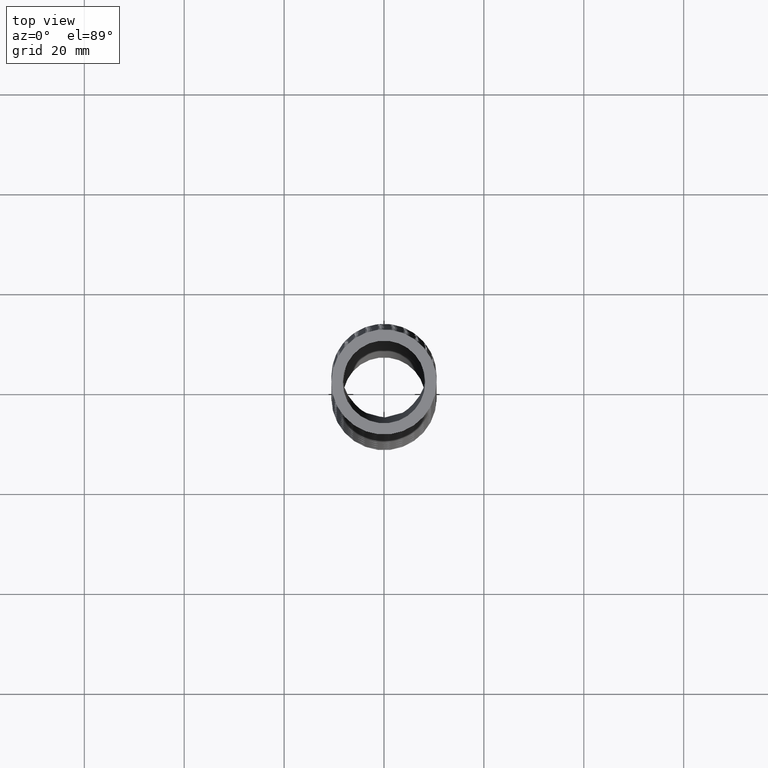
[diagram: clean part render]
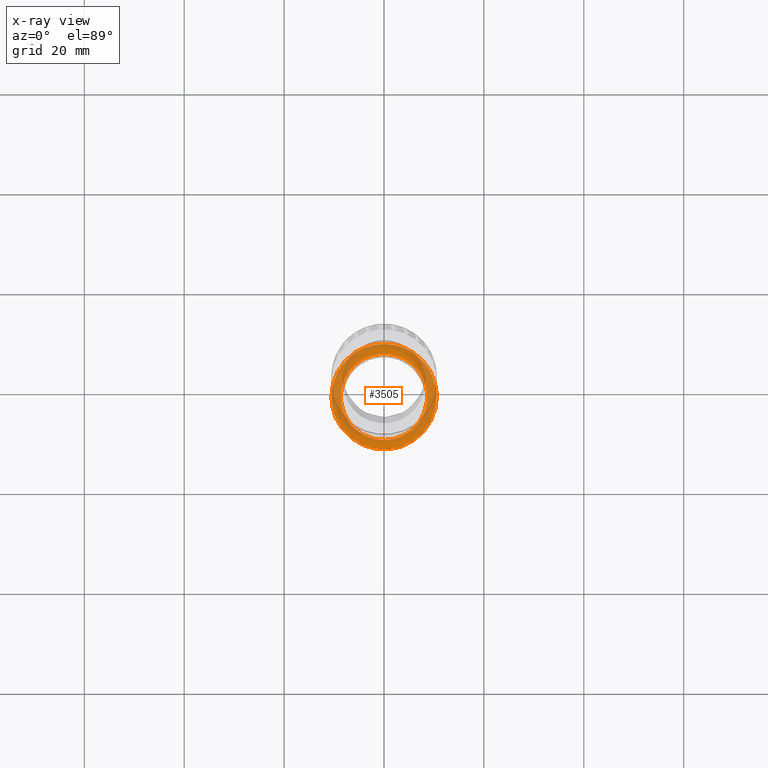
[diagram: x-ray — body ghosted, one internal face saturated and labeled with its STEP entity id]
A machine part, top view, then the same camera in x-ray: the body is ghosted and one INTERNAL B-rep face — a face not visible from any outside direction — is saturated and labeled: STEP entity #3505.
In plain terms, the highlighted planar face has unit normal (0, -0, 1).
Its self-contained STEP definition (entity closure, byte-faithful):
#2402 = EDGE_CURVE ( 'NONE', #2535, #2459, #11323, .T. ) ;
#2459 = VERTEX_POINT ( 'NONE', #11600 ) ;
#2535 = VERTEX_POINT ( 'NONE', #11768 ) ;
#3486 = ORIENTED_EDGE ( 'NONE', *, *, #3498, .F. ) ;
#3498 = EDGE_CURVE ( 'NONE', #2459, #2535, #15550, .T. ) ;
#3505 = ADVANCED_FACE ( 'NONE', ( #15546, #15545 ), #15582, .T. ) ;
#3508 = EDGE_LOOP ( 'NONE', ( #3510, #3512 ) ) ;
#3510 = ORIENTED_EDGE ( 'NONE', *, *, #19506, .F. ) ;
#3512 = ORIENTED_EDGE ( 'NONE', *, *, #19574, .F. ) ;
#3515 = EDGE_LOOP ( 'NONE', ( #3517, #3486 ) ) ;
#3517 = ORIENTED_EDGE ( 'NONE', *, *, #2402, .F. ) ;
#11319 = DIRECTION ( 'NONE',  ( 0.0000000000000000000, -1.000000000000000000, 0.0000000000000000000 ) ) ;
#11320 = DIRECTION ( 'NONE',  ( 0.0000000000000000000, -1.734723475976807100E-018, 1.000000000000000000 ) ) ;
#11321 = CARTESIAN_POINT ( 'NONE',  ( 0.0000000000000000000, -0.02274611171192321400, -5.464937736828732200 ) ) ;
#11322 = AXIS2_PLACEMENT_3D ( 'NONE', #11321, #11320, #11319 ) ;
#11323 = CIRCLE ( 'NONE', #11322, 0.3399999999999999700 ) ;
#11600 = CARTESIAN_POINT ( 'NONE',  ( 4.163799117101000900E-017, 0.3172538882880768200, -5.464937736828732200 ) ) ;
#11768 = CARTESIAN_POINT ( 'NONE',  ( 0.0000000000000000000, -0.3627461117119231700, -5.464937736828732200 ) ) ;
#15545 = FACE_BOUND ( 'NONE', #3515, .T. ) ;
#15546 = FACE_OUTER_BOUND ( 'NONE', #3508, .T. ) ;
#15547 = DIRECTION ( 'NONE',  ( 0.0000000000000000000, -1.000000000000000000, 0.0000000000000000000 ) ) ;
#15548 = DIRECTION ( 'NONE',  ( 0.0000000000000000000, -1.734723475976807100E-018, 1.000000000000000000 ) ) ;
#15549 = AXIS2_PLACEMENT_3D ( 'NONE', #15556, #15548, #15547 ) ;
#15550 = CIRCLE ( 'NONE', #15549, 0.3399999999999999700 ) ;
#15556 = CARTESIAN_POINT ( 'NONE',  ( 0.0000000000000000000, -0.02274611171192321400, -5.464937736828732200 ) ) ;
#15577 = DIRECTION ( 'NONE',  ( 0.0000000000000000000, -1.000000000000000000, -1.734723475976807100E-018 ) ) ;
#15578 = DIRECTION ( 'NONE',  ( 0.0000000000000000000, -1.734723475976807100E-018, 1.000000000000000000 ) ) ;
#15579 = CARTESIAN_POINT ( 'NONE',  ( 0.0000000000000000000, 0.4172538882880768600, -5.464937736828732200 ) ) ;
#15580 = AXIS2_PLACEMENT_3D ( 'NONE', #15579, #15578, #15577 ) ;
#15582 = PLANE ( 'NONE',  #15580 ) ;
#17519 = CARTESIAN_POINT ( 'NONE',  ( -0.2532923938269295800, -0.3512173383280495200, -5.464937736828728600 ) ) ;
#17520 = CARTESIAN_POINT ( 'NONE',  ( -0.2195528373879502800, -0.3738680642764501400, -5.464937736828729500 ) ) ;
#17521 = CARTESIAN_POINT ( 'NONE',  ( -0.2079192490952963300, -0.3808811643447759200, -5.464937736828733100 ) ) ;
#17522 = CARTESIAN_POINT ( 'NONE',  ( -0.1838581765978306900, -0.3938056636433138200, -5.464937736828733100 ) ) ;
#17523 = CARTESIAN_POINT ( 'NONE',  ( -0.1714109298587865300, -0.3997156466468335700, -5.464937736828734000 ) ) ;
#17524 = CARTESIAN_POINT ( 'NONE',  ( -0.1336942835062665300, -0.4153918422941408900, -5.464937736828733100 ) ) ;
#17526 = CARTESIAN_POINT ( 'NONE',  ( -0.1077913557857090900, -0.4232782405480442500, -5.464937736828733100 ) ) ;
#17527 = CARTESIAN_POINT ( 'NONE',  ( -0.06780344208651564700, -0.4312755175579405800, -5.464937736828733100 ) ) ;
#17528 = CARTESIAN_POINT ( 'NONE',  ( -0.05421737764275382000, -0.4333036651133560000, -5.464937736828732200 ) ) ;
#17529 = CARTESIAN_POINT ( 'NONE',  ( -0.02697472720179451200, -0.4359900985418384600, -5.464937736828730400 ) ) ;
#17530 = CARTESIAN_POINT ( 'NONE',  ( -0.01338761066140354100, -0.4366491003579451900, -5.464937736828733100 ) ) ;
#17531 = CARTESIAN_POINT ( 'NONE',  ( 0.02727407743484704100, -0.4366327549974951000, -5.464937736828735700 ) ) ;
#17532 = CARTESIAN_POINT ( 'NONE',  ( 0.05424994328282122700, -0.4339831745067491100, -5.464937736828733100 ) ) ;
#17533 = CARTESIAN_POINT ( 'NONE',  ( 0.09451010690118949500, -0.4259358548725572500, -5.464937736828732200 ) ) ;
#17534 = CARTESIAN_POINT ( 'NONE',  ( 0.1078323041540196300, -0.4225744650732133900, -5.464937736828734800 ) ) ;
#17535 = CARTESIAN_POINT ( 'NONE',  ( 0.1338345774377293400, -0.4146350242768425100, -5.464937736828738400 ) ) ;
#17536 = CARTESIAN_POINT ( 'NONE',  ( 0.1593291887571150500, -0.4054539067717680100, -5.464937736828734000 ) ) ;
#17537 = CARTESIAN_POINT ( 'NONE',  ( 0.1838217979711273800, -0.3938220193376187300, -5.464937736828732200 ) ) ;
#17538 = CARTESIAN_POINT ( 'NONE',  ( 0.2078055070147814500, -0.3809454267000108600, -5.464937736828734000 ) ) ;
#17539 = CARTESIAN_POINT ( 'NONE',  ( 0.2196059517606582000, -0.3738392784359944000, -5.464937736828734000 ) ) ;
#17540 = CARTESIAN_POINT ( 'NONE',  ( 0.2536205187259670300, -0.3509831784210056800, -5.464937736828734000 ) ) ;
#17541 = CARTESIAN_POINT ( 'NONE',  ( 0.2745053624421308100, -0.3337299205789436800, -5.464937736828730400 ) ) ;
#17542 = CARTESIAN_POINT ( 'NONE',  ( 0.3032080747407609500, -0.3048968520696983000, -5.464937736828732200 ) ) ;
#17543 = CARTESIAN_POINT ( 'NONE',  ( 0.3123350906048098000, -0.2947901110829491100, -5.464937736828738400 ) ) ;
#17544 = CARTESIAN_POINT ( 'NONE',  ( 0.3296796123799918300, -0.2735532365893415500, -5.464937736828735700 ) ) ;
#17545 = CARTESIAN_POINT ( 'NONE',  ( 0.3378010590027711900, -0.2625343779170476500, -5.464937736828726000 ) ) ;
#17546 = CARTESIAN_POINT ( 'NONE',  ( 0.3603469814118647200, -0.2286012992607529000, -5.464937736828727700 ) ) ;
#17547 = CARTESIAN_POINT ( 'NONE',  ( 0.3730683640342138400, -0.2046993903092518300, -5.464937736828732200 ) ) ;
#17548 = CARTESIAN_POINT ( 'NONE',  ( 0.3886567504208053900, -0.1669102042644292100, -5.464937736828730400 ) ) ;
#17549 = CARTESIAN_POINT ( 'NONE',  ( 0.3932817629746159200, -0.1539225542351071500, -5.464937736828728600 ) ) ;
#17550 = CARTESIAN_POINT ( 'NONE',  ( 0.4011590936649436200, -0.1278002873641745600, -5.464937736828729500 ) ) ;
#17551 = CARTESIAN_POINT ( 'NONE',  ( 0.4044348590811801000, -0.1146263319853195200, -5.464937736828729500 ) ) ;
#17552 = CARTESIAN_POINT ( 'NONE',  ( 0.4123179035665350800, -0.07477356482914839000, -5.464937736828729500 ) ) ;
#17553 = CARTESIAN_POINT ( 'NONE',  ( 0.4150000000000000900, -0.04776709749349757100, -5.464937736828732200 ) ) ;
#17554 = CARTESIAN_POINT ( 'NONE',  ( 0.4150000000000000900, -0.02030415200967537700, -5.464937736828733100 ) ) ;
#17555 = CARTESIAN_POINT ( 'NONE',  ( -0.4150000000000001500, -0.02030415200967533200, -5.464937736828733100 ) ) ;
#17556 = B_SPLINE_CURVE_WITH_KNOTS ( 'NONE', 3,
 ( #17554, #17553, #17552, #17551, #17550, #17549, #17548, #17547, #17546, #17545, #17544, #17543, #17542, #17541, #17540, #17539, #17538, #17537, #17536, #17535, #17534, #17533, #17532, #17531, #17530, #17529, #17528, #17527, #17526, #17524, #17523, #17522, #17521, #17520, #17519, #17586, #17585, #17584, #17583, #17582, #17581, #17580, #17579, #17578, #17577, #17576, #17575 ),
 .UNSPECIFIED., .F., .F.,
 ( 4, 2, 2, 2, 2, 2, 2, 2, 2, 1, 2, 2, 2, 2, 2, 2, 2, 2, 2, 2, 2, 2, 2, 4 ),
 ( 0.0000000000000000000, 0.002063010963991905100, 0.003094516445987857600, 0.004126021927983810100, 0.006189032891975712600, 0.007220538373971666400, 0.008252043855967618500, 0.01031505481995952600, 0.01134656030195547800, 0.01237806578395143200, 0.01340957126594738400, 0.01444107674794333600, 0.01650408771193524100, 0.01753559319393119300, 0.01856709867592714500, 0.02063010963991904900, 0.02166161512191499800, 0.02269312060391095000, 0.02475613156790285700, 0.02681914253189476500, 0.02785064801389072400, 0.02888215349588667600, 0.03094516445987858400, 0.03300817542387049500 ),
 .UNSPECIFIED. ) ;
#17557 = CARTESIAN_POINT ( 'NONE',  ( 0.4150000000000000900, -0.02030415200967537700, -5.464937736828733100 ) ) ;
#17575 = CARTESIAN_POINT ( 'NONE',  ( -0.4150000000000001500, -0.02030415200967533200, -5.464937736828733100 ) ) ;
#17576 = CARTESIAN_POINT ( 'NONE',  ( -0.4150000000000000900, -0.04743198527417359600, -5.464937736828732200 ) ) ;
#17577 = CARTESIAN_POINT ( 'NONE',  ( -0.4122954505490093500, -0.07498106237111050500, -5.464937736828730400 ) ) ;
#17578 = CARTESIAN_POINT ( 'NONE',  ( -0.4017200594881960000, -0.1282560468998375800, -5.464937736828734000 ) ) ;
#17579 = CARTESIAN_POINT ( 'NONE',  ( -0.3938980667774331100, -0.1541822377861724900, -5.464937736828729500 ) ) ;
#17580 = CARTESIAN_POINT ( 'NONE',  ( -0.3783152107370997800, -0.1919909816658015300, -5.464937736828728600 ) ) ;
#17581 = CARTESIAN_POINT ( 'NONE',  ( -0.3724410368897020400, -0.2044648959458922100, -5.464937736828738400 ) ) ;
#17582 = CARTESIAN_POINT ( 'NONE',  ( -0.3596201231416786300, -0.2285384226481297100, -5.464937736828735700 ) ) ;
#17583 = CARTESIAN_POINT ( 'NONE',  ( -0.3526583982230219700, -0.2401899047610848700, -5.464937736828724200 ) ) ;
#17584 = CARTESIAN_POINT ( 'NONE',  ( -0.3301525952588320600, -0.2740116940400558200, -5.464937736828727700 ) ) ;
#17585 = CARTESIAN_POINT ( 'NONE',  ( -0.3129720800223953500, -0.2950925092336674800, -5.464937736828730400 ) ) ;
#17586 = CARTESIAN_POINT ( 'NONE',  ( -0.2742484600058984800, -0.3339839768587319300, -5.464937736828732200 ) ) ;
#18159 = CARTESIAN_POINT ( 'NONE',  ( -0.2843518108030317300, 0.2832389120682767800, -5.464937736828732200 ) ) ;
#18160 = CARTESIAN_POINT ( 'NONE',  ( -0.3129964629543030000, 0.2544146891938680600, -5.464937736828734000 ) ) ;
#18161 = CARTESIAN_POINT ( 'NONE',  ( -0.3301518174545022300, 0.2334307995768286900, -5.464937736828734000 ) ) ;
#18162 = CARTESIAN_POINT ( 'NONE',  ( -0.3528839473639375200, 0.1992220450280111900, -5.464937736828734000 ) ) ;
#18163 = CARTESIAN_POINT ( 'NONE',  ( -0.3599007370923444400, 0.1874342931005273900, -5.464937736828734000 ) ) ;
#18164 = CARTESIAN_POINT ( 'NONE',  ( -0.3726431793725242200, 0.1634376636482585700, -5.464937736828734000 ) ) ;
#18165 = CARTESIAN_POINT ( 'NONE',  ( -0.3841605797801603300, 0.1389222280796252900, -5.464937736828726000 ) ) ;
#18166 = CARTESIAN_POINT ( 'NONE',  ( -0.3932574075696797500, 0.1133816782618161200, -5.464937736828726000 ) ) ;
#18167 = CARTESIAN_POINT ( 'NONE',  ( -0.4011236900488373600, 0.08731999161775842700, -5.464937736828728600 ) ) ;
#18168 = CARTESIAN_POINT ( 'NONE',  ( -0.4044533121358698200, 0.07395350088846953900, -5.464937736828729500 ) ) ;
#18169 = CARTESIAN_POINT ( 'NONE',  ( -0.4123836498582588200, 0.03377299597968790000, -5.464937736828728600 ) ) ;
#18170 = CARTESIAN_POINT ( 'NONE',  ( -0.4149999999999999200, 0.006817136731609750800, -5.464937736828729500 ) ) ;
#18171 = CARTESIAN_POINT ( 'NONE',  ( -0.4150000000000001500, -0.02030415200967533200, -5.464937736828733100 ) ) ;
#18174 = B_SPLINE_CURVE_WITH_KNOTS ( 'NONE', 3,
 ( #18171, #18170, #18169, #18168, #18167, #18166, #18165, #18164, #18163, #18162, #18161, #18160, #18159, #18244, #18243, #18242, #18241, #18240, #18239, #18238, #18237, #18236, #18235, #18234, #18233, #18232, #18231, #18230, #18229, #18228, #18227, #18226, #18225, #18224, #18223, #18222, #18221, #18220, #18219, #18218, #18217, #18216, #18215, #18214, #18213, #18212 ),
 .UNSPECIFIED., .F., .F.,
 ( 4, 2, 2, 1, 2, 2, 2, 2, 2, 2, 2, 2, 2, 2, 1, 2, 2, 2, 2, 2, 2, 2, 2, 4 ),
 ( 0.03300817542387049500, 0.03507068869152921200, 0.03610194532535857000, 0.03713320195918793500, 0.03816445859301729300, 0.03919571522684665200, 0.04125822849450536800, 0.04228948512833472600, 0.04332074176216409200, 0.04538325502982282200, 0.04641451166365218000, 0.04744576829748154600, 0.04950828156514026900, 0.05053953819896963400, 0.05157079483279900000, 0.05260205146662835800, 0.05363330810045772300, 0.05569582136811645400, 0.05775833463577518400, 0.05982084790343390700, 0.06085210453726328000, 0.06188336117109263800, 0.06394587443875135400, 0.06600838770641008500 ),
 .UNSPECIFIED. ) ;
#18212 = CARTESIAN_POINT ( 'NONE',  ( 0.4150000000000000900, -0.02030415200967537700, -5.464937736828733100 ) ) ;
#18213 = CARTESIAN_POINT ( 'NONE',  ( 0.4150000000000000900, 0.007152168105933104700, -5.464937736828733100 ) ) ;
#18214 = CARTESIAN_POINT ( 'NONE',  ( 0.4123188595156612700, 0.03432558934009326300, -5.464937736828733100 ) ) ;
#18215 = CARTESIAN_POINT ( 'NONE',  ( 0.4016142972329826400, 0.08810802152898220000, -5.464937736828733100 ) ) ;
#18216 = CARTESIAN_POINT ( 'NONE',  ( 0.3936781120462551400, 0.1141834646790220700, -5.464937736828737500 ) ) ;
#18217 = CARTESIAN_POINT ( 'NONE',  ( 0.3781627611672625000, 0.1517101854693676800, -5.464937736828737500 ) ) ;
#18218 = CARTESIAN_POINT ( 'NONE',  ( 0.3723801166780773000, 0.1639761120247665000, -5.464937736828729500 ) ) ;
#18219 = CARTESIAN_POINT ( 'NONE',  ( 0.3595696628245869700, 0.1880126794717778300, -5.464937736828728600 ) ) ;
#18220 = CARTESIAN_POINT ( 'NONE',  ( 0.3524987109761316700, 0.1998411650493846800, -5.464937736828730400 ) ) ;
#18221 = CARTESIAN_POINT ( 'NONE',  ( 0.3297878096658077300, 0.2338967669850226200, -5.464937736828730400 ) ) ;
#18222 = CARTESIAN_POINT ( 'NONE',  ( 0.3126246501010410700, 0.2548447191669607800, -5.464937736828732200 ) ) ;
#18223 = CARTESIAN_POINT ( 'NONE',  ( 0.2743143543185935200, 0.2932821348915883900, -5.464937736828730400 ) ) ;
#18224 = CARTESIAN_POINT ( 'NONE',  ( 0.2529418972842249500, 0.3108727321345513000, -5.464937736828729500 ) ) ;
#18225 = CARTESIAN_POINT ( 'NONE',  ( 0.2078427644017134800, 0.3410705229291510800, -5.464937736828730400 ) ) ;
#18226 = CARTESIAN_POINT ( 'NONE',  ( 0.1839810886961442700, 0.3538744639554298200, -5.464937736828734000 ) ) ;
#18227 = CARTESIAN_POINT ( 'NONE',  ( 0.1461851073931672900, 0.3695761954827301900, -5.464937736828734000 ) ) ;
#18228 = CARTESIAN_POINT ( 'NONE',  ( 0.1332100744612124100, 0.3742264519512057400, -5.464937736828734800 ) ) ;
#18229 = CARTESIAN_POINT ( 'NONE',  ( 0.1071433819625567100, 0.3821377759591275100, -5.464937736828733100 ) ) ;
#18230 = CARTESIAN_POINT ( 'NONE',  ( 0.08083201387501169600, 0.3887219955556114900, -5.464937736828733100 ) ) ;
#18231 = CARTESIAN_POINT ( 'NONE',  ( 0.05404013742003395400, 0.3926999691549392700, -5.464937736828733100 ) ) ;
#18232 = CARTESIAN_POINT ( 'NONE',  ( 0.02700543014933792100, 0.3953608442720112900, -5.464937736828733100 ) ) ;
#18233 = CARTESIAN_POINT ( 'NONE',  ( 0.01331345853206151300, 0.3960323631016213800, -5.464937736828729500 ) ) ;
#18234 = CARTESIAN_POINT ( 'NONE',  ( -0.02777722420421341000, 0.3959942776444404500, -5.464937736828728600 ) ) ;
#18235 = CARTESIAN_POINT ( 'NONE',  ( -0.05474890550716051500, 0.3932748825007421100, -5.464937736828732200 ) ) ;
#18236 = CARTESIAN_POINT ( 'NONE',  ( -0.09459419515062922300, 0.3852883538174733400, -5.464937736828734000 ) ) ;
#18237 = CARTESIAN_POINT ( 'NONE',  ( -0.1077731729671331800, 0.3819701727466846000, -5.464937736828730400 ) ) ;
#18238 = CARTESIAN_POINT ( 'NONE',  ( -0.1339199820398185600, 0.3739862148485541500, -5.464937736828728600 ) ) ;
#18239 = CARTESIAN_POINT ( 'NONE',  ( -0.1468608471117495200, 0.3693189979209794400, -5.464937736828730400 ) ) ;
#18240 = CARTESIAN_POINT ( 'NONE',  ( -0.1845096367135260500, 0.3536060251513939400, -5.464937736828732200 ) ) ;
#18241 = CARTESIAN_POINT ( 'NONE',  ( -0.2083456484440795500, 0.3407833880062655600, -5.464937736828732200 ) ) ;
#18242 = CARTESIAN_POINT ( 'NONE',  ( -0.2422080449622950600, 0.3180343045910627400, -5.464937736828733100 ) ) ;
#18243 = CARTESIAN_POINT ( 'NONE',  ( -0.2532351577784151000, 0.3098118847220080500, -5.464937736828734000 ) ) ;
#18244 = CARTESIAN_POINT ( 'NONE',  ( -0.2743148101747914800, 0.2924018516517167800, -5.464937736828733100 ) ) ;
#19506 = EDGE_CURVE ( 'NONE', #19508, #19509, #17556, .T. ) ;
#19508 = VERTEX_POINT ( 'NONE', #17557 ) ;
#19509 = VERTEX_POINT ( 'NONE', #17555 ) ;
#19574 = EDGE_CURVE ( 'NONE', #19509, #19508, #18174, .T. ) ;